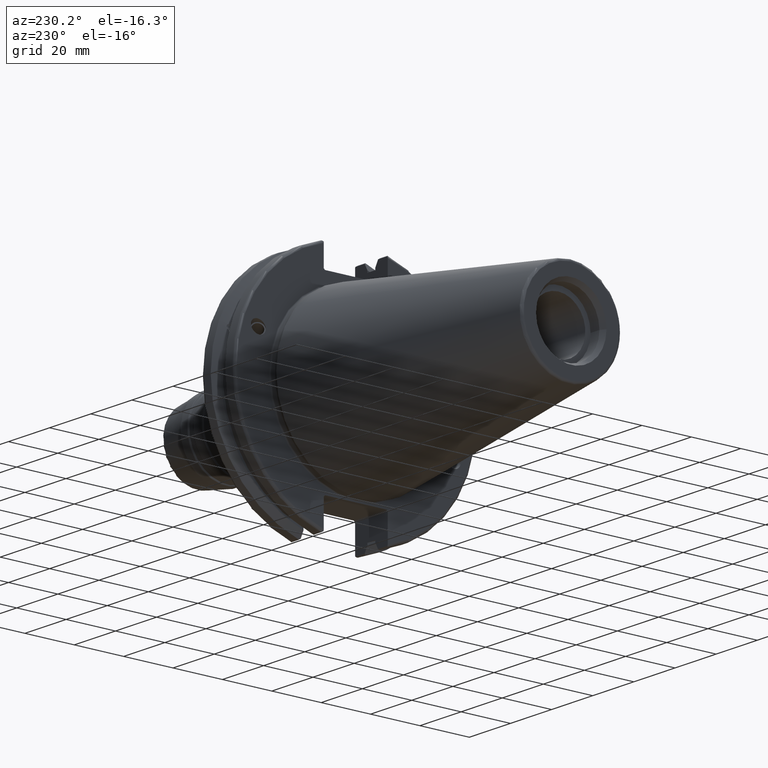
[diagram: clean part render]
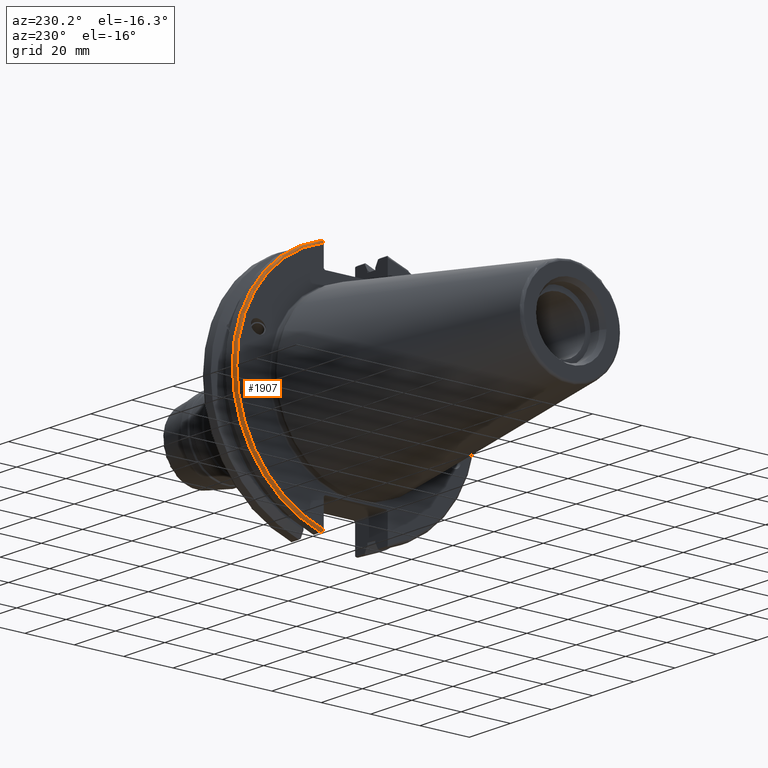
[diagram: same view with one face highlighted and labeled with its STEP entity id]
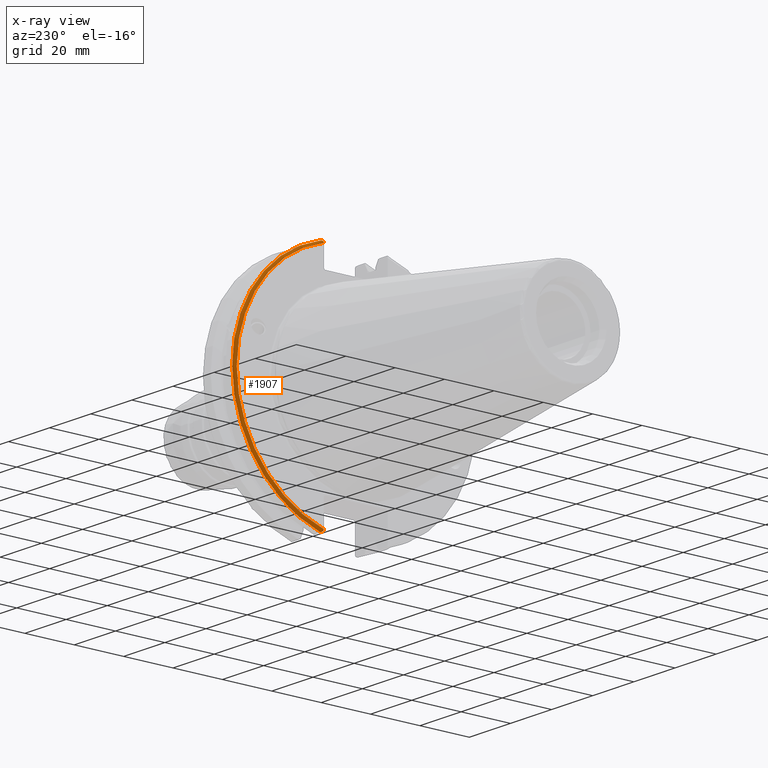
[diagram: x-ray of the same camera — body ghosted, the highlighted face saturated]
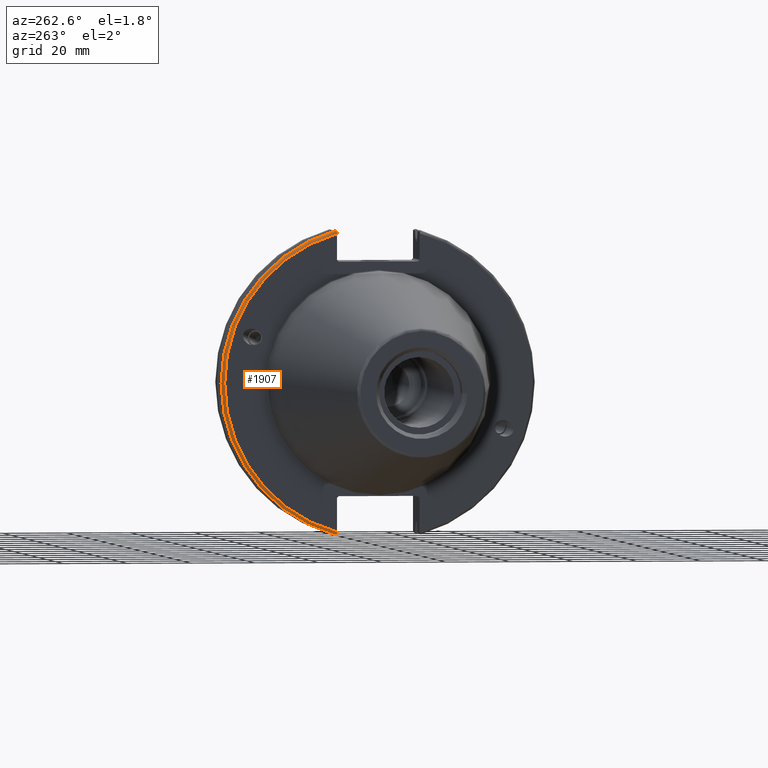
[diagram: same view with one face highlighted and labeled with its STEP entity id]
A machine part, auxiliary view. The second image highlights one B-rep face of the part: STEP entity #1907.
The next image is the same camera in x-ray: the body ghosted, the highlighted face saturated — about 0% of this face is hidden behind the body in this view.
A second angle (auxiliary view) of the same face is appended — the face is thin or edge-on in the first view.
In plain terms, the highlighted toroidal blend (fillet) surface has major radius 48.2125 mm and minor (blend) radius 1 mm.
Its self-contained STEP definition (entity closure, byte-faithful):
#87=TOROIDAL_SURFACE('',#2151,48.2125,1.);
#135=B_SPLINE_CURVE_WITH_KNOTS('',3,(#3612,#3613,#3614,#3615,#3616,#3617),
 .UNSPECIFIED.,.F.,.F.,(4,2,4),(0.0976892167532858,0.112000071948292,0.150881870548587),
 .UNSPECIFIED.);
#144=B_SPLINE_CURVE_WITH_KNOTS('',3,(#3736,#3737,#3738,#3739,#3740,#3741,
#3742,#3743),.UNSPECIFIED.,.F.,.F.,(4,2,2,4),(-0.104075769062722,-0.0730268503455479,
-0.0343639873656265,0.),.UNSPECIFIED.);
#145=B_SPLINE_CURVE_WITH_KNOTS('',3,(#3746,#3747,#3748,#3749,#3750,#3751,
#3752,#3753),.UNSPECIFIED.,.F.,.F.,(4,2,2,4),(0.,0.0343639873656266,0.0730268503455482,
0.104075769062722),.UNSPECIFIED.);
#146=B_SPLINE_CURVE_WITH_KNOTS('',3,(#3754,#3755,#3756,#3757,#3758,#3759),
 .UNSPECIFIED.,.F.,.F.,(4,2,4),(0.452859340315923,0.491741138916218,0.506051994111224),
 .UNSPECIFIED.);
#241=FACE_OUTER_BOUND('',#366,.T.);
#366=EDGE_LOOP('',(#1651,#1652,#1653,#1654,#1655,#1656));
#715=CIRCLE('',#2134,48.2125);
#721=CIRCLE('',#2152,49.2125);
#885=VERTEX_POINT('',#3555);
#886=VERTEX_POINT('',#3557);
#896=VERTEX_POINT('',#3611);
#916=VERTEX_POINT('',#3734);
#917=VERTEX_POINT('',#3735);
#918=VERTEX_POINT('',#3744);
#1131=EDGE_CURVE('',#886,#885,#715,.T.);
#1147=EDGE_CURVE('',#896,#886,#135,.T.);
#1179=EDGE_CURVE('',#916,#917,#144,.T.);
#1180=EDGE_CURVE('',#917,#918,#721,.T.);
#1181=EDGE_CURVE('',#918,#896,#145,.T.);
#1182=EDGE_CURVE('',#885,#916,#146,.T.);
#1651=ORIENTED_EDGE('',*,*,#1179,.T.);
#1652=ORIENTED_EDGE('',*,*,#1180,.T.);
#1653=ORIENTED_EDGE('',*,*,#1181,.T.);
#1654=ORIENTED_EDGE('',*,*,#1147,.T.);
#1655=ORIENTED_EDGE('',*,*,#1131,.T.);
#1656=ORIENTED_EDGE('',*,*,#1182,.T.);
#1907=ADVANCED_FACE('',(#241),#87,.T.);
#2134=AXIS2_PLACEMENT_3D('',#3558,#2608,#2609);
#2151=AXIS2_PLACEMENT_3D('',#3733,#2666,#2667);
#2152=AXIS2_PLACEMENT_3D('',#3745,#2668,#2669);
#2608=DIRECTION('center_axis',(1.,0.,0.));
#2609=DIRECTION('ref_axis',(0.,1.,-6.12323399573677E-17));
#2666=DIRECTION('center_axis',(1.,0.,0.));
#2667=DIRECTION('ref_axis',(0.,0.,-1.));
#2668=DIRECTION('center_axis',(-1.,0.,0.));
#2669=DIRECTION('ref_axis',(0.,1.,-6.12323399573677E-17));
#3555=CARTESIAN_POINT('',(3.175,12.95,46.4407434937254));
#3557=CARTESIAN_POINT('',(3.175,12.95,-46.4407434937254));
#3558=CARTESIAN_POINT('Origin',(3.175,0.,0.));
#3611=CARTESIAN_POINT('',(3.31949794294344,12.95,-46.9780755322918));
#3612=CARTESIAN_POINT('Ctrl Pts',(3.31949794294344,12.95,-46.9780755322918));
#3613=CARTESIAN_POINT('Ctrl Pts',(3.29341556483839,12.95,-46.9333752207329));
#3614=CARTESIAN_POINT('Ctrl Pts',(3.27115672912336,12.95,-46.887363294568));
#3615=CARTESIAN_POINT('Ctrl Pts',(3.20453530071253,12.95,-46.7230464903732));
#3616=CARTESIAN_POINT('Ctrl Pts',(3.175,12.95,-46.5703494890597));
#3617=CARTESIAN_POINT('Ctrl Pts',(3.175,12.95,-46.4407434937254));
#3733=CARTESIAN_POINT('Origin',(4.175,0.,0.));
#3734=CARTESIAN_POINT('',(3.31949794294344,12.95,46.9780755322918));
#3735=CARTESIAN_POINT('',(4.175,13.4317035994433,47.3440544806494));
#3736=CARTESIAN_POINT('Ctrl Pts',(3.31949794294344,12.95,46.9780755322918));
#3737=CARTESIAN_POINT('Ctrl Pts',(3.36785032278754,13.0300321736484,47.0388807469102));
#3738=CARTESIAN_POINT('Ctrl Pts',(3.43235971798504,13.1083611826073,47.0983919657547));
#3739=CARTESIAN_POINT('Ctrl Pts',(3.58507512107923,13.2478194810695,47.2043467509586));
#3740=CARTESIAN_POINT('Ctrl Pts',(3.70638116490965,13.3242014686233,47.2623787015413));
#3741=CARTESIAN_POINT('Ctrl Pts',(3.92661103245834,13.4067722493645,47.3251126473446));
#3742=CARTESIAN_POINT('Ctrl Pts',(4.06045337544791,13.4317035994433,47.3440544806494));
#3743=CARTESIAN_POINT('Ctrl Pts',(4.175,13.4317035994433,47.3440544806494));
#3744=CARTESIAN_POINT('',(4.175,13.4317035994433,-47.3440544806494));
#3745=CARTESIAN_POINT('Origin',(4.175,0.,0.));
#3746=CARTESIAN_POINT('Ctrl Pts',(4.175,13.4317035994433,-47.3440544806494));
#3747=CARTESIAN_POINT('Ctrl Pts',(4.06045337544791,13.4317035994433,-47.3440544806494));
#3748=CARTESIAN_POINT('Ctrl Pts',(3.92661103245834,13.4067722493645,-47.3251126473446));
#3749=CARTESIAN_POINT('Ctrl Pts',(3.70638116490964,13.3242014686232,-47.2623787015413));
#3750=CARTESIAN_POINT('Ctrl Pts',(3.58507512107923,13.2478194810695,-47.2043467509586));
#3751=CARTESIAN_POINT('Ctrl Pts',(3.43235971798504,13.1083611826073,-47.0983919657547));
#3752=CARTESIAN_POINT('Ctrl Pts',(3.36785032278754,13.0300321736484,-47.0388807469102));
#3753=CARTESIAN_POINT('Ctrl Pts',(3.31949794294344,12.95,-46.9780755322918));
#3754=CARTESIAN_POINT('Ctrl Pts',(3.175,12.95,46.4407434937254));
#3755=CARTESIAN_POINT('Ctrl Pts',(3.175,12.95,46.5703494890597));
#3756=CARTESIAN_POINT('Ctrl Pts',(3.20453530071253,12.95,46.7230464903732));
#3757=CARTESIAN_POINT('Ctrl Pts',(3.27115672912336,12.95,46.887363294568));
#3758=CARTESIAN_POINT('Ctrl Pts',(3.29341556483839,12.95,46.9333752207329));
#3759=CARTESIAN_POINT('Ctrl Pts',(3.31949794294344,12.95,46.9780755322918));